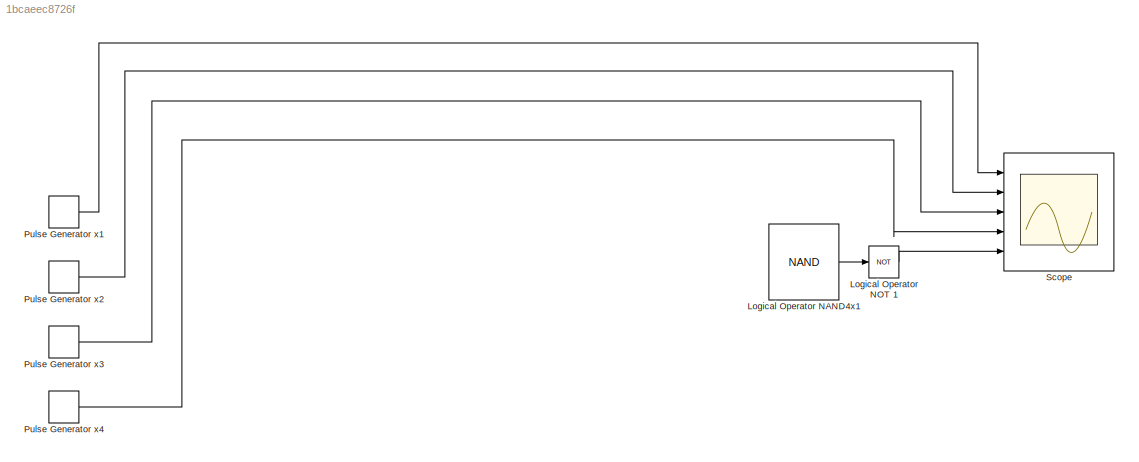
MODEL slx_1bcaeec8726f
KIND model
CONFIG AbsTol = auto
CONFIG EnableMultiTasking = off
CONFIG FixedStep = auto
CONFIG MaxStep = auto
CONFIG MinStep = auto
CONFIG RelTol = 1e-3
CONFIG SampleTimeConstraint = Unconstrained
CONFIG Solver = VariableStepAuto
CONFIG SolverName = VariableStepAuto
CONFIG StartTime = 0.0
CONFIG StopTime = 16.0
BLOCK [Logic] Logical Operator NAND4x1
  AllPortsSameDT = off
  Inputs = 4
  Operator = NAND
  OutDataTypeStr = boolean
  Ports = [4, 1]
BLOCK [Logic] Logical Operator NOT 1
  AllPortsSameDT = off
  Operator = NOT
  OutDataTypeStr = boolean
  Ports = [1, 1]
BLOCK [DiscretePulseGenerator] Pulse Generator x1
  Ports = [0, 1]
  PulseType = Time based
  PulseWidth = 50
BLOCK [DiscretePulseGenerator] Pulse Generator x2
  Period = 4
  Ports = [0, 1]
  PulseType = Time based
  PulseWidth = 50
BLOCK [DiscretePulseGenerator] Pulse Generator x3
  Period = 8
  Ports = [0, 1]
  PulseType = Time based
  PulseWidth = 50
BLOCK [DiscretePulseGenerator] Pulse Generator x4
  Period = 16
  Ports = [0, 1]
  PulseType = Time based
  PulseWidth = 50
BLOCK [Scope] Scope
  NumInputPorts = 5
  Ports = [5]
  ScopeSpecificationString = Simulink.scopes.TimeScopeBlockCfg('CurrentConfiguration', extmgr.ConfigurationSet(extmgr.Configuration('Core','General UI',true),extmgr.Configuration('Core','Source UI',true),extmgr.Configuration('Sources','WiredSimulink',true),extmgr.Configuration('Visuals','Time Domain',true,'SerializedDisplays',{struct('MinYLimReal','-1','MaxYLimReal','2','YLabelReal','','MinYLimMag','0','MaxYLimMag','10','Lege...<+6064ch>
LINE Logical Operator NAND4x1:1 -> Logical Operator NOT 1:1
LINE Logical Operator NOT 1:1 -> Scope:5
LINE Pulse Generator x1:1 -> Scope:1
LINE Pulse Generator x2:1 -> Scope:2
LINE Pulse Generator x3:1 -> Scope:3
LINE Pulse Generator x4:1 -> Scope:4
